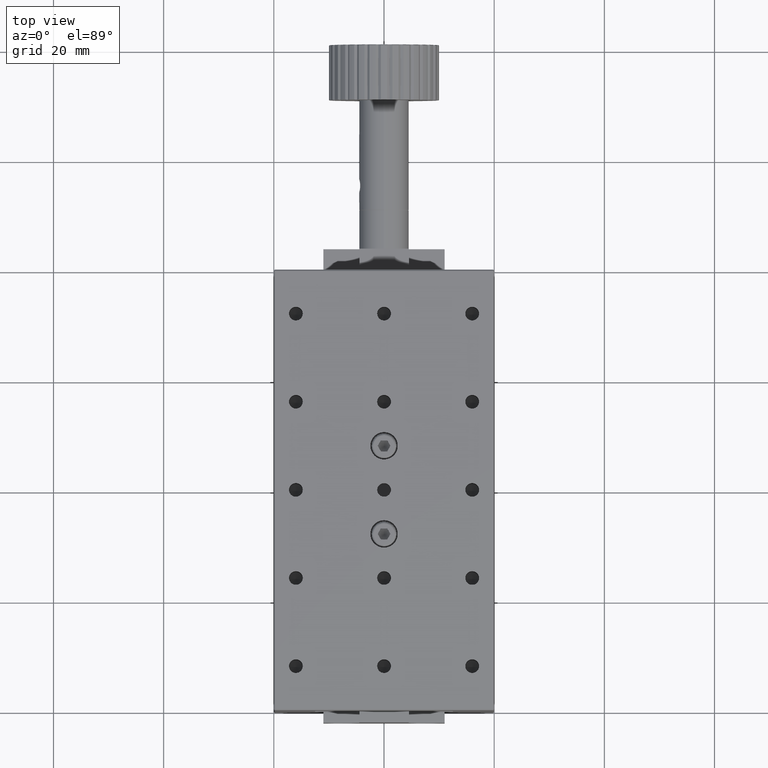
[diagram: clean part render]
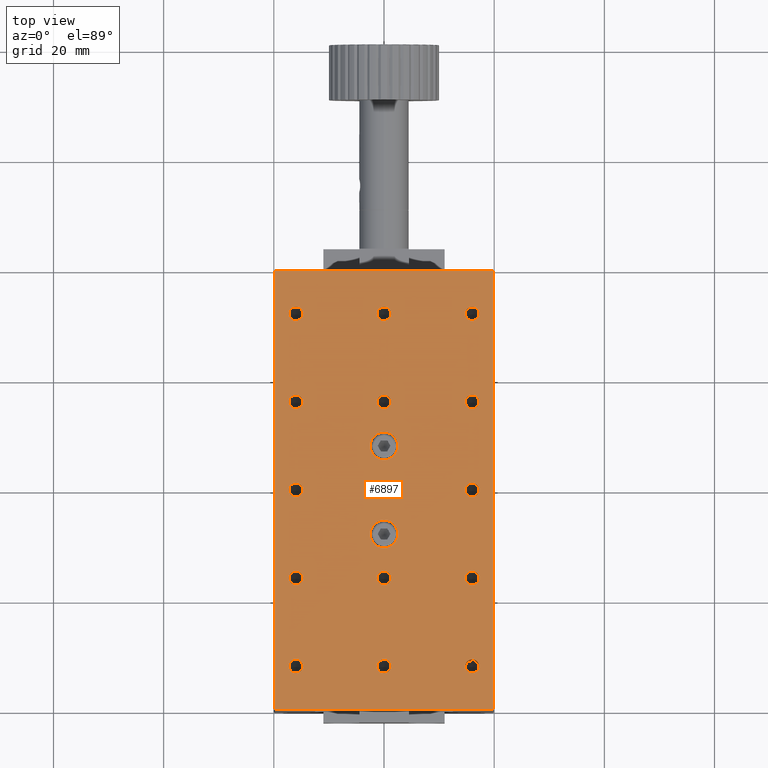
[diagram: same view with one face highlighted and labeled with its STEP entity id]
A machine part, top view. The second image highlights one B-rep face of the part: STEP entity #6897.
In plain terms, the highlighted planar face has unit normal (0, 0, -1).
Its self-contained STEP definition (entity closure, byte-faithful):
#124 = VERTEX_POINT ( 'NONE', #17958 ) ;
#147 = FACE_BOUND ( 'NONE', #23936, .T. ) ;
#229 = DIRECTION ( 'NONE',  ( 1.000000000000000000, 0.0000000000000000000, 0.0000000000000000000 ) ) ;
#295 = AXIS2_PLACEMENT_3D ( 'NONE', #25595, #12956, #311 ) ;
#311 = DIRECTION ( 'NONE',  ( 1.000000000000000000, 0.0000000000000000000, 0.0000000000000000000 ) ) ;
#346 = DIRECTION ( 'NONE',  ( 1.000000000000000000, 0.0000000000000000000, 0.0000000000000000000 ) ) ;
#405 = CARTESIAN_POINT ( 'NONE',  ( -16.00000000000000000, 32.00000000000000000, 30.00000000000000000 ) ) ;
#445 = CARTESIAN_POINT ( 'NONE',  ( 1.250000000000000000, -16.00000000000000000, 30.00000000000000000 ) ) ;
#475 = DIRECTION ( 'NONE',  ( -0.0000000000000000000, 0.0000000000000000000, 1.000000000000000000 ) ) ;
#534 = ORIENTED_EDGE ( 'NONE', *, *, #8130, .F. ) ;
#544 = AXIS2_PLACEMENT_3D ( 'NONE', #12443, #27184, #14575 ) ;
#579 = CIRCLE ( 'NONE', #16755, 1.250000000000000000 ) ;
#709 = EDGE_CURVE ( 'NONE', #18464, #20191, #2756, .T. ) ;
#718 = DIRECTION ( 'NONE',  ( 0.0000000000000000000, -1.000000000000000000, -1.387778780781445500E-015 ) ) ;
#811 = DIRECTION ( 'NONE',  ( 0.0000000000000000000, -6.938893903907229400E-016, 1.000000000000000000 ) ) ;
#815 = FACE_BOUND ( 'NONE', #17749, .T. ) ;
#894 = VERTEX_POINT ( 'NONE', #22662 ) ;
#913 = CARTESIAN_POINT ( 'NONE',  ( 0.0000000000000000000, 7.999999999999998200, 30.00000000000000000 ) ) ;
#965 = DIRECTION ( 'NONE',  ( 1.000000000000000000, 0.0000000000000000000, 0.0000000000000000000 ) ) ;
#976 = AXIS2_PLACEMENT_3D ( 'NONE', #26803, #8912, #12921 ) ;
#1008 = ORIENTED_EDGE ( 'NONE', *, *, #11231, .F. ) ;
#1035 = CIRCLE ( 'NONE', #13650, 1.250000000000001100 ) ;
#1114 = CARTESIAN_POINT ( 'NONE',  ( 14.75000000000000200, -32.00000000000000000, 30.00000000000000000 ) ) ;
#1295 = CIRCLE ( 'NONE', #9816, 1.250000000000000000 ) ;
#1385 = CARTESIAN_POINT ( 'NONE',  ( 19.80000000001449900, -39.80000000007100200, 29.99999999991449300 ) ) ;
#1478 = FACE_BOUND ( 'NONE', #2002, .T. ) ;
#1507 = ORIENTED_EDGE ( 'NONE', *, *, #6130, .F. ) ;
#1559 = AXIS2_PLACEMENT_3D ( 'NONE', #22395, #9689, #24505 ) ;
#1685 = AXIS2_PLACEMENT_3D ( 'NONE', #13457, #11587, #11303 ) ;
#1815 = VERTEX_POINT ( 'NONE', #25751 ) ;
#1817 = DIRECTION ( 'NONE',  ( 0.0000000000000000000, 0.0000000000000000000, 1.000000000000000000 ) ) ;
#1969 = CIRCLE ( 'NONE', #4542, 1.250000000000001100 ) ;
#2002 = EDGE_LOOP ( 'NONE', ( #2187, #4800 ) ) ;
#2121 = EDGE_LOOP ( 'NONE', ( #15075, #26439 ) ) ;
#2122 = DIRECTION ( 'NONE',  ( 1.000000000000000000, 0.0000000000000000000, 0.0000000000000000000 ) ) ;
#2128 = CARTESIAN_POINT ( 'NONE',  ( 17.25000000000000000, 32.00000000000000000, 30.00000000000000000 ) ) ;
#2162 = EDGE_LOOP ( 'NONE', ( #534, #15062 ) ) ;
#2187 = ORIENTED_EDGE ( 'NONE', *, *, #6980, .F. ) ;
#2194 = EDGE_LOOP ( 'NONE', ( #3184, #14796 ) ) ;
#2211 = CARTESIAN_POINT ( 'NONE',  ( 0.0000000000000000000, 0.0000000000000000000, 30.00000000000000000 ) ) ;
#2229 = EDGE_CURVE ( 'NONE', #17092, #17724, #4963, .T. ) ;
#2467 = CARTESIAN_POINT ( 'NONE',  ( 0.0000000000000000000, 0.0000000000000000000, 30.00000000000000000 ) ) ;
#2539 = DIRECTION ( 'NONE',  ( 1.000000000000000000, 0.0000000000000000000, 0.0000000000000000000 ) ) ;
#2586 = DIRECTION ( 'NONE',  ( -0.0000000000000000000, 0.0000000000000000000, 1.000000000000000000 ) ) ;
#2597 = CARTESIAN_POINT ( 'NONE',  ( 16.00000000000000000, 32.00000000000000000, 30.00000000000000000 ) ) ;
#2607 = VERTEX_POINT ( 'NONE', #19676 ) ;
#2651 = EDGE_CURVE ( 'NONE', #4113, #5127, #7792, .T. ) ;
#2716 = ORIENTED_EDGE ( 'NONE', *, *, #26018, .F. ) ;
#2756 = CIRCLE ( 'NONE', #26189, 1.250000000000001100 ) ;
#2826 = DIRECTION ( 'NONE',  ( 1.000000000000000000, 0.0000000000000000000, 0.0000000000000000000 ) ) ;
#2884 = CIRCLE ( 'NONE', #976, 2.500000000000000400 ) ;
#2927 = CARTESIAN_POINT ( 'NONE',  ( -1.250000000000000000, -32.00000000000000000, 30.00000000000000000 ) ) ;
#2948 = DIRECTION ( 'NONE',  ( -0.0000000000000000000, 0.0000000000000000000, 1.000000000000000000 ) ) ;
#3037 = CIRCLE ( 'NONE', #27174, 1.250000000000001100 ) ;
#3049 = CARTESIAN_POINT ( 'NONE',  ( 19.80000000007101200, 39.80000000001450600, 29.99999999991449300 ) ) ;
#3115 = VERTEX_POINT ( 'NONE', #11966 ) ;
#3184 = ORIENTED_EDGE ( 'NONE', *, *, #9685, .F. ) ;
#3362 = CARTESIAN_POINT ( 'NONE',  ( -16.00000000000000000, -32.00000000000000000, 30.00000000000000000 ) ) ;
#3415 = CIRCLE ( 'NONE', #1559, 1.250000000000000000 ) ;
#3432 = CARTESIAN_POINT ( 'NONE',  ( 16.00000000000000000, 0.0000000000000000000, 30.00000000000000000 ) ) ;
#3568 = AXIS2_PLACEMENT_3D ( 'NONE', #25512, #12873, #229 ) ;
#3839 = ORIENTED_EDGE ( 'NONE', *, *, #14949, .F. ) ;
#4113 = VERTEX_POINT ( 'NONE', #2128 ) ;
#4233 = CARTESIAN_POINT ( 'NONE',  ( 0.0000000000000000000, -8.000000000000001800, 30.00000000000000000 ) ) ;
#4333 = DIRECTION ( 'NONE',  ( 1.000000000000000000, 0.0000000000000000000, 0.0000000000000000000 ) ) ;
#4399 = AXIS2_PLACEMENT_3D ( 'NONE', #4684, #19501, #6807 ) ;
#4542 = AXIS2_PLACEMENT_3D ( 'NONE', #8767, #23597, #10906 ) ;
#4589 = CIRCLE ( 'NONE', #8231, 1.250000000000001100 ) ;
#4660 = VERTEX_POINT ( 'NONE', #17550 ) ;
#4684 = CARTESIAN_POINT ( 'NONE',  ( -16.00000000000000000, 0.0000000000000000000, 30.00000000000000000 ) ) ;
#4744 = ORIENTED_EDGE ( 'NONE', *, *, #11749, .F. ) ;
#4800 = ORIENTED_EDGE ( 'NONE', *, *, #14382, .F. ) ;
#4963 = CIRCLE ( 'NONE', #21645, 1.250000000000000000 ) ;
#5080 = FACE_BOUND ( 'NONE', #19714, .T. ) ;
#5127 = VERTEX_POINT ( 'NONE', #16843 ) ;
#5143 = ORIENTED_EDGE ( 'NONE', *, *, #2651, .F. ) ;
#5207 = CARTESIAN_POINT ( 'NONE',  ( 0.0000000000000000000, 5.499999999999998200, 29.99999999999999600 ) ) ;
#5464 = VERTEX_POINT ( 'NONE', #14565 ) ;
#5473 = DIRECTION ( 'NONE',  ( 1.000000000000000000, 0.0000000000000000000, 0.0000000000000000000 ) ) ;
#5507 = EDGE_LOOP ( 'NONE', ( #8607, #3839 ) ) ;
#5525 = ORIENTED_EDGE ( 'NONE', *, *, #9943, .F. ) ;
#5561 = DIRECTION ( 'NONE',  ( 1.000000000000000000, 0.0000000000000000000, 0.0000000000000000000 ) ) ;
#5601 = AXIS2_PLACEMENT_3D ( 'NONE', #12541, #27287, #14668 ) ;
#5637 = CIRCLE ( 'NONE', #5601, 1.250000000000001100 ) ;
#5700 = VERTEX_POINT ( 'NONE', #7599 ) ;
#5718 = CARTESIAN_POINT ( 'NONE',  ( 1.250000000000000000, 16.00000000000000000, 30.00000000000000000 ) ) ;
#5725 = CARTESIAN_POINT ( 'NONE',  ( 16.00000000000000000, -32.00000000000000000, 30.00000000000000000 ) ) ;
#5735 = DIRECTION ( 'NONE',  ( 0.0000000000000000000, -6.938893903907229400E-016, 1.000000000000000000 ) ) ;
#5746 = FACE_BOUND ( 'NONE', #8260, .T. ) ;
#5825 = AXIS2_PLACEMENT_3D ( 'NONE', #13125, #475, #15234 ) ;
#5956 = AXIS2_PLACEMENT_3D ( 'NONE', #9027, #23854, #11166 ) ;
#6130 = EDGE_CURVE ( 'NONE', #16082, #25738, #2884, .T. ) ;
#6233 = CIRCLE ( 'NONE', #12655, 2.500000000000000400 ) ;
#6242 = EDGE_CURVE ( 'NONE', #8649, #13018, #25952, .T. ) ;
#6257 = CARTESIAN_POINT ( 'NONE',  ( 0.0000000000000000000, -16.00000000000000000, 30.00000000000000000 ) ) ;
#6345 = DIRECTION ( 'NONE',  ( 0.0000000000000000000, -1.000000000000000000, -1.387778780781445500E-015 ) ) ;
#6350 = ORIENTED_EDGE ( 'NONE', *, *, #6242, .F. ) ;
#6411 = FACE_BOUND ( 'NONE', #2194, .T. ) ;
#6416 = DIRECTION ( 'NONE',  ( -0.0000000000000000000, 0.0000000000000000000, 1.000000000000000000 ) ) ;
#6523 = DIRECTION ( 'NONE',  ( -0.0000000000000000000, 1.000000000000000000, -0.0000000000000000000 ) ) ;
#6807 = DIRECTION ( 'NONE',  ( 1.000000000000000000, 0.0000000000000000000, 0.0000000000000000000 ) ) ;
#6897 = ADVANCED_FACE ( 'NONE', ( #23295, #12692, #1478, #17679, #12037, #6411, #815, #22641, #17003, #11359, #5746, #147, #21947, #16329, #10690, #5080, #26860, #21281 ), #22125, .F. ) ;
#6980 = EDGE_CURVE ( 'NONE', #25096, #10131, #18009, .T. ) ;
#6996 = EDGE_CURVE ( 'NONE', #25738, #16082, #10348, .T. ) ;
#7041 = AXIS2_PLACEMENT_3D ( 'NONE', #2597, #2586, #2826 ) ;
#7056 = EDGE_CURVE ( 'NONE', #13018, #8649, #14652, .T. ) ;
#7188 = CARTESIAN_POINT ( 'NONE',  ( -1.250000000000000000, 32.00000000000000000, 30.00000000000000000 ) ) ;
#7248 = VERTEX_POINT ( 'NONE', #7188 ) ;
#7369 = LINE ( 'NONE', #14919, #12346 ) ;
#7507 = DIRECTION ( 'NONE',  ( 1.000000000000000000, 0.0000000000000000000, 0.0000000000000000000 ) ) ;
#7599 = CARTESIAN_POINT ( 'NONE',  ( 1.250000000000000000, 32.00000000000000000, 30.00000000000000000 ) ) ;
#7780 = DIRECTION ( 'NONE',  ( 0.0000000000000000000, 0.0000000000000000000, 1.000000000000000000 ) ) ;
#7792 = CIRCLE ( 'NONE', #7041, 1.250000000000001100 ) ;
#7841 = DIRECTION ( 'NONE',  ( 1.000000000000000000, 0.0000000000000000000, 0.0000000000000000000 ) ) ;
#7856 = VERTEX_POINT ( 'NONE', #445 ) ;
#7907 = EDGE_LOOP ( 'NONE', ( #24608, #18112 ) ) ;
#8130 = EDGE_CURVE ( 'NONE', #20191, #18464, #1035, .T. ) ;
#8184 = CIRCLE ( 'NONE', #544, 1.250000000000001100 ) ;
#8215 = CARTESIAN_POINT ( 'NONE',  ( -17.25000000000000000, 1.530808498934193000E-016, 30.00000000000000000 ) ) ;
#8231 = AXIS2_PLACEMENT_3D ( 'NONE', #26221, #13591, #965 ) ;
#8260 = EDGE_LOOP ( 'NONE', ( #10556, #6350 ) ) ;
#8353 = DIRECTION ( 'NONE',  ( 1.000000000000000000, 0.0000000000000000000, 0.0000000000000000000 ) ) ;
#8361 = CARTESIAN_POINT ( 'NONE',  ( 0.0000000000000000000, 39.79999999999999700, 30.00000000000000000 ) ) ;
#8447 = ORIENTED_EDGE ( 'NONE', *, *, #21249, .F. ) ;
#8582 = DIRECTION ( 'NONE',  ( -0.0000000000000000000, 0.0000000000000000000, 1.000000000000000000 ) ) ;
#8607 = ORIENTED_EDGE ( 'NONE', *, *, #14014, .F. ) ;
#8649 = VERTEX_POINT ( 'NONE', #13788 ) ;
#8767 = CARTESIAN_POINT ( 'NONE',  ( -16.00000000000000000, 32.00000000000000000, 30.00000000000000000 ) ) ;
#8912 = DIRECTION ( 'NONE',  ( 0.0000000000000000000, -6.938893903907229400E-016, 1.000000000000000000 ) ) ;
#9023 = ORIENTED_EDGE ( 'NONE', *, *, #25475, .F. ) ;
#9027 = CARTESIAN_POINT ( 'NONE',  ( 16.00000000000000000, -16.00000000000000000, 30.00000000000000000 ) ) ;
#9232 = CARTESIAN_POINT ( 'NONE',  ( 14.75000000000000200, -16.00000000000000000, 30.00000000000000000 ) ) ;
#9257 = CIRCLE ( 'NONE', #9830, 1.250000000000000000 ) ;
#9685 = EDGE_CURVE ( 'NONE', #2607, #4660, #12031, .T. ) ;
#9689 = DIRECTION ( 'NONE',  ( -0.0000000000000000000, 0.0000000000000000000, 1.000000000000000000 ) ) ;
#9816 = AXIS2_PLACEMENT_3D ( 'NONE', #6257, #21026, #8353 ) ;
#9830 = AXIS2_PLACEMENT_3D ( 'NONE', #2211, #16986, #4333 ) ;
#9943 = EDGE_CURVE ( 'NONE', #25087, #11530, #16641, .T. ) ;
#9969 = EDGE_CURVE ( 'NONE', #1815, #15105, #15976, .T. ) ;
#10087 = DIRECTION ( 'NONE',  ( 0.0000000000000000000, 0.0000000000000000000, 1.000000000000000000 ) ) ;
#10100 = CARTESIAN_POINT ( 'NONE',  ( 17.25000000000000000, -32.00000000000000000, 30.00000000000000000 ) ) ;
#10131 = VERTEX_POINT ( 'NONE', #9232 ) ;
#10348 = CIRCLE ( 'NONE', #11576, 2.500000000000000400 ) ;
#10556 = ORIENTED_EDGE ( 'NONE', *, *, #7056, .F. ) ;
#10637 = CARTESIAN_POINT ( 'NONE',  ( 0.0000000000000000000, 16.00000000000000000, 30.00000000000000000 ) ) ;
#10671 = ORIENTED_EDGE ( 'NONE', *, *, #18564, .F. ) ;
#10690 = FACE_BOUND ( 'NONE', #14772, .T. ) ;
#10729 = CIRCLE ( 'NONE', #3568, 1.250000000000000000 ) ;
#10863 = DIRECTION ( 'NONE',  ( -0.0000000000000000000, 0.0000000000000000000, 1.000000000000000000 ) ) ;
#10906 = DIRECTION ( 'NONE',  ( 1.000000000000000000, 0.0000000000000000000, 0.0000000000000000000 ) ) ;
#11166 = DIRECTION ( 'NONE',  ( 1.000000000000000000, 0.0000000000000000000, 0.0000000000000000000 ) ) ;
#11170 = EDGE_CURVE ( 'NONE', #4660, #2607, #12554, .T. ) ;
#11231 = EDGE_CURVE ( 'NONE', #21016, #22408, #11900, .T. ) ;
#11303 = DIRECTION ( 'NONE',  ( 1.000000000000000000, 0.0000000000000000000, 0.0000000000000000000 ) ) ;
#11359 = FACE_BOUND ( 'NONE', #7907, .T. ) ;
#11495 = CIRCLE ( 'NONE', #4399, 1.250000000000001100 ) ;
#11530 = VERTEX_POINT ( 'NONE', #1385 ) ;
#11550 = CIRCLE ( 'NONE', #5956, 1.250000000000001100 ) ;
#11576 = AXIS2_PLACEMENT_3D ( 'NONE', #913, #811, #718 ) ;
#11587 = DIRECTION ( 'NONE',  ( 0.0000000000000000000, 0.0000000000000000000, 1.000000000000000000 ) ) ;
#11713 = EDGE_CURVE ( 'NONE', #7856, #3115, #1295, .T. ) ;
#11749 = EDGE_CURVE ( 'NONE', #12151, #894, #6233, .T. ) ;
#11875 = LINE ( 'NONE', #22080, #17513 ) ;
#11900 = CIRCLE ( 'NONE', #22778, 1.250000000000001100 ) ;
#11966 = CARTESIAN_POINT ( 'NONE',  ( -1.250000000000000000, -16.00000000000000000, 30.00000000000000000 ) ) ;
#11967 = EDGE_CURVE ( 'NONE', #5127, #4113, #16469, .T. ) ;
#12031 = CIRCLE ( 'NONE', #13689, 1.250000000000001100 ) ;
#12037 = FACE_BOUND ( 'NONE', #21052, .T. ) ;
#12151 = VERTEX_POINT ( 'NONE', #16207 ) ;
#12333 = EDGE_CURVE ( 'NONE', #12398, #26379, #579, .T. ) ;
#12346 = VECTOR ( 'NONE', #6523, 1000.000000000000000 ) ;
#12398 = VERTEX_POINT ( 'NONE', #25613 ) ;
#12443 = CARTESIAN_POINT ( 'NONE',  ( 16.00000000000000000, -32.00000000000000000, 30.00000000000000000 ) ) ;
#12541 = CARTESIAN_POINT ( 'NONE',  ( -16.00000000000000000, 0.0000000000000000000, 30.00000000000000000 ) ) ;
#12554 = CIRCLE ( 'NONE', #12836, 1.250000000000001100 ) ;
#12655 = AXIS2_PLACEMENT_3D ( 'NONE', #4233, #19044, #6345 ) ;
#12692 = FACE_BOUND ( 'NONE', #24395, .T. ) ;
#12703 = EDGE_CURVE ( 'NONE', #3115, #7856, #3415, .T. ) ;
#12784 = DIRECTION ( 'NONE',  ( 1.000000000000000000, 0.0000000000000000000, 0.0000000000000000000 ) ) ;
#12836 = AXIS2_PLACEMENT_3D ( 'NONE', #3432, #18238, #5561 ) ;
#12873 = DIRECTION ( 'NONE',  ( -0.0000000000000000000, 0.0000000000000000000, 1.000000000000000000 ) ) ;
#12921 = DIRECTION ( 'NONE',  ( 0.0000000000000000000, -1.000000000000000000, -1.387778780781445500E-015 ) ) ;
#12956 = DIRECTION ( 'NONE',  ( -0.0000000000000000000, 0.0000000000000000000, 1.000000000000000000 ) ) ;
#12958 = CARTESIAN_POINT ( 'NONE',  ( 19.80000000000000100, 0.0000000000000000000, 30.00000000000000000 ) ) ;
#12960 = CIRCLE ( 'NONE', #16818, 1.250000000000000000 ) ;
#12990 = DIRECTION ( 'NONE',  ( -0.0000000000000000000, 0.0000000000000000000, 1.000000000000000000 ) ) ;
#13018 = VERTEX_POINT ( 'NONE', #19014 ) ;
#13098 = EDGE_LOOP ( 'NONE', ( #23131, #9023, #21310, #5525 ) ) ;
#13125 = CARTESIAN_POINT ( 'NONE',  ( 0.0000000000000000000, 32.00000000000000000, 30.00000000000000000 ) ) ;
#13457 = CARTESIAN_POINT ( 'NONE',  ( 16.00000000000000000, -16.00000000000000000, 30.00000000000000000 ) ) ;
#13591 = DIRECTION ( 'NONE',  ( -0.0000000000000000000, 0.0000000000000000000, 1.000000000000000000 ) ) ;
#13650 = AXIS2_PLACEMENT_3D ( 'NONE', #20454, #7780, #22608 ) ;
#13689 = AXIS2_PLACEMENT_3D ( 'NONE', #22795, #10087, #24874 ) ;
#13788 = CARTESIAN_POINT ( 'NONE',  ( -17.25000000000000000, 16.00000000000000000, 30.00000000000000000 ) ) ;
#13834 = CARTESIAN_POINT ( 'NONE',  ( -16.00000000000000000, 16.00000000000000000, 30.00000000000000000 ) ) ;
#13861 = CIRCLE ( 'NONE', #295, 1.250000000000001100 ) ;
#14014 = EDGE_CURVE ( 'NONE', #124, #16314, #5637, .T. ) ;
#14084 = EDGE_CURVE ( 'NONE', #17724, #17092, #9257, .T. ) ;
#14093 = ORIENTED_EDGE ( 'NONE', *, *, #2229, .F. ) ;
#14133 = EDGE_LOOP ( 'NONE', ( #18107, #2716 ) ) ;
#14365 = CIRCLE ( 'NONE', #21443, 2.500000000000000400 ) ;
#14382 = EDGE_CURVE ( 'NONE', #10131, #25096, #11550, .T. ) ;
#14493 = EDGE_CURVE ( 'NONE', #11530, #20829, #11875, .T. ) ;
#14565 = CARTESIAN_POINT ( 'NONE',  ( 1.250000000000000000, -32.00000000000000000, 30.00000000000000000 ) ) ;
#14575 = DIRECTION ( 'NONE',  ( 1.000000000000000000, 0.0000000000000000000, 0.0000000000000000000 ) ) ;
#14620 = VECTOR ( 'NONE', #2122, 1000.000000000000000 ) ;
#14652 = CIRCLE ( 'NONE', #21496, 1.250000000000001100 ) ;
#14668 = DIRECTION ( 'NONE',  ( 1.000000000000000000, 0.0000000000000000000, 0.0000000000000000000 ) ) ;
#14751 = ORIENTED_EDGE ( 'NONE', *, *, #18730, .F. ) ;
#14772 = EDGE_LOOP ( 'NONE', ( #27218, #1507 ) ) ;
#14796 = ORIENTED_EDGE ( 'NONE', *, *, #11170, .F. ) ;
#14911 = DIRECTION ( 'NONE',  ( -0.0000000000000000000, 0.0000000000000000000, 1.000000000000000000 ) ) ;
#14919 = CARTESIAN_POINT ( 'NONE',  ( -19.80000000000000100, 0.0000000000000000000, 30.00000000000000000 ) ) ;
#14949 = EDGE_CURVE ( 'NONE', #16314, #124, #11495, .T. ) ;
#15062 = ORIENTED_EDGE ( 'NONE', *, *, #709, .F. ) ;
#15075 = ORIENTED_EDGE ( 'NONE', *, *, #18582, .F. ) ;
#15105 = VERTEX_POINT ( 'NONE', #18012 ) ;
#15177 = DIRECTION ( 'NONE',  ( -0.0000000000000000000, 0.0000000000000000000, 1.000000000000000000 ) ) ;
#15201 = CARTESIAN_POINT ( 'NONE',  ( -19.80000000000000100, 39.79999999999999700, 30.00000000000000000 ) ) ;
#15234 = DIRECTION ( 'NONE',  ( 1.000000000000000000, 0.0000000000000000000, 0.0000000000000000000 ) ) ;
#15244 = CARTESIAN_POINT ( 'NONE',  ( -17.25000000000000000, -16.00000000000000000, 30.00000000000000000 ) ) ;
#15388 = DIRECTION ( 'NONE',  ( 1.000000000000000000, 0.0000000000000000000, 0.0000000000000000000 ) ) ;
#15561 = CARTESIAN_POINT ( 'NONE',  ( 16.00000000000000000, 32.00000000000000000, 30.00000000000000000 ) ) ;
#15674 = DIRECTION ( 'NONE',  ( -0.0000000000000000000, 0.0000000000000000000, 1.000000000000000000 ) ) ;
#15687 = EDGE_CURVE ( 'NONE', #5700, #7248, #17056, .T. ) ;
#15728 = ORIENTED_EDGE ( 'NONE', *, *, #24398, .F. ) ;
#15843 = EDGE_LOOP ( 'NONE', ( #20733, #26084 ) ) ;
#15976 = CIRCLE ( 'NONE', #15979, 1.250000000000001100 ) ;
#15979 = AXIS2_PLACEMENT_3D ( 'NONE', #405, #15177, #2539 ) ;
#16082 = VERTEX_POINT ( 'NONE', #18083 ) ;
#16207 = CARTESIAN_POINT ( 'NONE',  ( 3.061616997868382600E-016, -5.500000000000001800, 30.00000000000000400 ) ) ;
#16314 = VERTEX_POINT ( 'NONE', #8215 ) ;
#16329 = FACE_BOUND ( 'NONE', #2121, .T. ) ;
#16386 = AXIS2_PLACEMENT_3D ( 'NONE', #15561, #2948, #17723 ) ;
#16469 = CIRCLE ( 'NONE', #16386, 1.250000000000001100 ) ;
#16524 = VERTEX_POINT ( 'NONE', #15244 ) ;
#16641 = LINE ( 'NONE', #12958, #27182 ) ;
#16755 = AXIS2_PLACEMENT_3D ( 'NONE', #10637, #25421, #12784 ) ;
#16818 = AXIS2_PLACEMENT_3D ( 'NONE', #21252, #8582, #23414 ) ;
#16843 = CARTESIAN_POINT ( 'NONE',  ( 14.75000000000000200, 32.00000000000000000, 30.00000000000000000 ) ) ;
#16986 = DIRECTION ( 'NONE',  ( -0.0000000000000000000, 0.0000000000000000000, 1.000000000000000000 ) ) ;
#17003 = FACE_BOUND ( 'NONE', #2162, .T. ) ;
#17056 = CIRCLE ( 'NONE', #17886, 1.250000000000000000 ) ;
#17092 = VERTEX_POINT ( 'NONE', #24227 ) ;
#17399 = EDGE_CURVE ( 'NONE', #18071, #25087, #25832, .T. ) ;
#17513 = VECTOR ( 'NONE', #26210, 1000.000000000000000 ) ;
#17550 = CARTESIAN_POINT ( 'NONE',  ( 14.75000000000000200, 1.530808498934190800E-016, 30.00000000000000000 ) ) ;
#17618 = CARTESIAN_POINT ( 'NONE',  ( -17.25000000000000000, -32.00000000000000000, 30.00000000000000000 ) ) ;
#17679 = FACE_BOUND ( 'NONE', #23577, .T. ) ;
#17723 = DIRECTION ( 'NONE',  ( 1.000000000000000000, 0.0000000000000000000, 0.0000000000000000000 ) ) ;
#17724 = VERTEX_POINT ( 'NONE', #22631 ) ;
#17749 = EDGE_LOOP ( 'NONE', ( #19545, #14093 ) ) ;
#17806 = AXIS2_PLACEMENT_3D ( 'NONE', #15201, #25633, #19656 ) ;
#17839 = CARTESIAN_POINT ( 'NONE',  ( 17.25000000000000000, -16.00000000000000000, 30.00000000000000000 ) ) ;
#17851 = CIRCLE ( 'NONE', #5825, 1.250000000000000000 ) ;
#17886 = AXIS2_PLACEMENT_3D ( 'NONE', #19121, #6416, #21184 ) ;
#17892 = CARTESIAN_POINT ( 'NONE',  ( 16.00000000000000000, 16.00000000000000000, 30.00000000000000000 ) ) ;
#17958 = CARTESIAN_POINT ( 'NONE',  ( -14.75000000000000000, 0.0000000000000000000, 30.00000000000000000 ) ) ;
#18009 = CIRCLE ( 'NONE', #1685, 1.250000000000001100 ) ;
#18012 = CARTESIAN_POINT ( 'NONE',  ( -14.75000000000000000, 32.00000000000000000, 30.00000000000000000 ) ) ;
#18071 = VERTEX_POINT ( 'NONE', #21577 ) ;
#18083 = CARTESIAN_POINT ( 'NONE',  ( 3.061616997868382600E-016, 10.49999999999999800, 30.00000000000000400 ) ) ;
#18107 = ORIENTED_EDGE ( 'NONE', *, *, #19807, .F. ) ;
#18112 = ORIENTED_EDGE ( 'NONE', *, *, #12333, .F. ) ;
#18167 = DIRECTION ( 'NONE',  ( -0.0000000000000000000, 0.0000000000000000000, 1.000000000000000000 ) ) ;
#18238 = DIRECTION ( 'NONE',  ( 0.0000000000000000000, 0.0000000000000000000, 1.000000000000000000 ) ) ;
#18239 = ORIENTED_EDGE ( 'NONE', *, *, #23668, .F. ) ;
#18391 = EDGE_LOOP ( 'NONE', ( #8447, #1008 ) ) ;
#18430 = CARTESIAN_POINT ( 'NONE',  ( 0.0000000000000000000, -8.000000000000001800, 30.00000000000000000 ) ) ;
#18464 = VERTEX_POINT ( 'NONE', #23060 ) ;
#18564 = EDGE_CURVE ( 'NONE', #25346, #19915, #13861, .T. ) ;
#18582 = EDGE_CURVE ( 'NONE', #15105, #1815, #1969, .T. ) ;
#18666 = DIRECTION ( 'NONE',  ( 1.000000000000000000, 0.0000000000000000000, 0.0000000000000000000 ) ) ;
#18730 = EDGE_CURVE ( 'NONE', #16524, #27239, #4589, .T. ) ;
#18930 = AXIS2_PLACEMENT_3D ( 'NONE', #25640, #12990, #346 ) ;
#19014 = CARTESIAN_POINT ( 'NONE',  ( -14.75000000000000000, 16.00000000000000000, 30.00000000000000000 ) ) ;
#19044 = DIRECTION ( 'NONE',  ( 0.0000000000000000000, -6.938893903907229400E-016, 1.000000000000000000 ) ) ;
#19121 = CARTESIAN_POINT ( 'NONE',  ( 0.0000000000000000000, 32.00000000000000000, 30.00000000000000000 ) ) ;
#19501 = DIRECTION ( 'NONE',  ( -0.0000000000000000000, 0.0000000000000000000, 1.000000000000000000 ) ) ;
#19545 = ORIENTED_EDGE ( 'NONE', *, *, #14084, .F. ) ;
#19656 = DIRECTION ( 'NONE',  ( 1.000000000000000000, 0.0000000000000000000, 0.0000000000000000000 ) ) ;
#19676 = CARTESIAN_POINT ( 'NONE',  ( 17.25000000000000000, 0.0000000000000000000, 30.00000000000000000 ) ) ;
#19714 = EDGE_LOOP ( 'NONE', ( #27233, #4744 ) ) ;
#19807 = EDGE_CURVE ( 'NONE', #5464, #25675, #26650, .T. ) ;
#19915 = VERTEX_POINT ( 'NONE', #17618 ) ;
#20191 = VERTEX_POINT ( 'NONE', #21089 ) ;
#20336 = ORIENTED_EDGE ( 'NONE', *, *, #11967, .F. ) ;
#20454 = CARTESIAN_POINT ( 'NONE',  ( 16.00000000000000000, 16.00000000000000000, 30.00000000000000000 ) ) ;
#20507 = DIRECTION ( 'NONE',  ( -0.0000000000000000000, 0.0000000000000000000, 1.000000000000000000 ) ) ;
#20513 = DIRECTION ( 'NONE',  ( 0.0000000000000000000, -1.000000000000000000, -1.387778780781445500E-015 ) ) ;
#20733 = ORIENTED_EDGE ( 'NONE', *, *, #15687, .F. ) ;
#20765 = AXIS2_PLACEMENT_3D ( 'NONE', #23557, #10863, #25655 ) ;
#20776 = AXIS2_PLACEMENT_3D ( 'NONE', #13834, #15674, #15388 ) ;
#20824 = EDGE_CURVE ( 'NONE', #7248, #5700, #17851, .T. ) ;
#20829 = VERTEX_POINT ( 'NONE', #23678 ) ;
#20919 = DIRECTION ( 'NONE',  ( -0.0000000000000000000, 0.0000000000000000000, 1.000000000000000000 ) ) ;
#21010 = CARTESIAN_POINT ( 'NONE',  ( -16.00000000000000000, 16.00000000000000000, 30.00000000000000000 ) ) ;
#21016 = VERTEX_POINT ( 'NONE', #1114 ) ;
#21026 = DIRECTION ( 'NONE',  ( -0.0000000000000000000, 0.0000000000000000000, 1.000000000000000000 ) ) ;
#21052 = EDGE_LOOP ( 'NONE', ( #18239, #14751 ) ) ;
#21089 = CARTESIAN_POINT ( 'NONE',  ( 17.25000000000000000, 16.00000000000000000, 30.00000000000000000 ) ) ;
#21184 = DIRECTION ( 'NONE',  ( 1.000000000000000000, 0.0000000000000000000, 0.0000000000000000000 ) ) ;
#21249 = EDGE_CURVE ( 'NONE', #22408, #21016, #8184, .T. ) ;
#21252 = CARTESIAN_POINT ( 'NONE',  ( 0.0000000000000000000, -32.00000000000000000, 30.00000000000000000 ) ) ;
#21281 = FACE_OUTER_BOUND ( 'NONE', #13098, .T. ) ;
#21310 = ORIENTED_EDGE ( 'NONE', *, *, #14493, .F. ) ;
#21443 = AXIS2_PLACEMENT_3D ( 'NONE', #18430, #5735, #20513 ) ;
#21496 = AXIS2_PLACEMENT_3D ( 'NONE', #21010, #20919, #18666 ) ;
#21577 = CARTESIAN_POINT ( 'NONE',  ( -19.80000000007100500, 39.80000000001450600, 29.99999999991449300 ) ) ;
#21645 = AXIS2_PLACEMENT_3D ( 'NONE', #2467, #14911, #23247 ) ;
#21947 = FACE_BOUND ( 'NONE', #15843, .T. ) ;
#22080 = CARTESIAN_POINT ( 'NONE',  ( 0.0000000000000000000, -39.79999999999999700, 30.00000000000000000 ) ) ;
#22125 = PLANE ( 'NONE',  #17806 ) ;
#22395 = CARTESIAN_POINT ( 'NONE',  ( 0.0000000000000000000, -16.00000000000000000, 30.00000000000000000 ) ) ;
#22408 = VERTEX_POINT ( 'NONE', #10100 ) ;
#22583 = EDGE_CURVE ( 'NONE', #26379, #12398, #10729, .T. ) ;
#22608 = DIRECTION ( 'NONE',  ( 1.000000000000000000, 0.0000000000000000000, 0.0000000000000000000 ) ) ;
#22631 = CARTESIAN_POINT ( 'NONE',  ( 1.250000000000000000, 0.0000000000000000000, 30.00000000000000000 ) ) ;
#22641 = FACE_BOUND ( 'NONE', #5507, .T. ) ;
#22662 = CARTESIAN_POINT ( 'NONE',  ( 0.0000000000000000000, -10.50000000000000200, 29.99999999999999600 ) ) ;
#22778 = AXIS2_PLACEMENT_3D ( 'NONE', #5725, #20507, #7841 ) ;
#22795 = CARTESIAN_POINT ( 'NONE',  ( 16.00000000000000000, 0.0000000000000000000, 30.00000000000000000 ) ) ;
#22900 = CARTESIAN_POINT ( 'NONE',  ( -14.75000000000000000, -32.00000000000000000, 30.00000000000000000 ) ) ;
#22938 = EDGE_CURVE ( 'NONE', #894, #12151, #14365, .T. ) ;
#23060 = CARTESIAN_POINT ( 'NONE',  ( 14.75000000000000200, 16.00000000000000000, 30.00000000000000000 ) ) ;
#23131 = ORIENTED_EDGE ( 'NONE', *, *, #17399, .F. ) ;
#23247 = DIRECTION ( 'NONE',  ( 1.000000000000000000, 0.0000000000000000000, 0.0000000000000000000 ) ) ;
#23295 = FACE_BOUND ( 'NONE', #14133, .T. ) ;
#23414 = DIRECTION ( 'NONE',  ( 1.000000000000000000, 0.0000000000000000000, 0.0000000000000000000 ) ) ;
#23557 = CARTESIAN_POINT ( 'NONE',  ( -16.00000000000000000, -16.00000000000000000, 30.00000000000000000 ) ) ;
#23577 = EDGE_LOOP ( 'NONE', ( #25987, #25778 ) ) ;
#23597 = DIRECTION ( 'NONE',  ( -0.0000000000000000000, 0.0000000000000000000, 1.000000000000000000 ) ) ;
#23668 = EDGE_CURVE ( 'NONE', #27239, #16524, #25496, .T. ) ;
#23678 = CARTESIAN_POINT ( 'NONE',  ( -19.80000000001449900, -39.80000000007100200, 29.99999999991449300 ) ) ;
#23854 = DIRECTION ( 'NONE',  ( 0.0000000000000000000, 0.0000000000000000000, 1.000000000000000000 ) ) ;
#23936 = EDGE_LOOP ( 'NONE', ( #5143, #20336 ) ) ;
#23996 = CARTESIAN_POINT ( 'NONE',  ( -14.75000000000000000, -16.00000000000000000, 30.00000000000000000 ) ) ;
#24227 = CARTESIAN_POINT ( 'NONE',  ( -1.250000000000000000, 1.530808498934191600E-016, 30.00000000000000000 ) ) ;
#24395 = EDGE_LOOP ( 'NONE', ( #10671, #15728 ) ) ;
#24398 = EDGE_CURVE ( 'NONE', #19915, #25346, #3037, .T. ) ;
#24505 = DIRECTION ( 'NONE',  ( 1.000000000000000000, 0.0000000000000000000, 0.0000000000000000000 ) ) ;
#24608 = ORIENTED_EDGE ( 'NONE', *, *, #22583, .F. ) ;
#24874 = DIRECTION ( 'NONE',  ( 1.000000000000000000, 0.0000000000000000000, 0.0000000000000000000 ) ) ;
#25087 = VERTEX_POINT ( 'NONE', #3049 ) ;
#25096 = VERTEX_POINT ( 'NONE', #17839 ) ;
#25346 = VERTEX_POINT ( 'NONE', #22900 ) ;
#25421 = DIRECTION ( 'NONE',  ( -0.0000000000000000000, 0.0000000000000000000, 1.000000000000000000 ) ) ;
#25475 = EDGE_CURVE ( 'NONE', #20829, #18071, #7369, .T. ) ;
#25496 = CIRCLE ( 'NONE', #20765, 1.250000000000001100 ) ;
#25512 = CARTESIAN_POINT ( 'NONE',  ( 0.0000000000000000000, 16.00000000000000000, 30.00000000000000000 ) ) ;
#25595 = CARTESIAN_POINT ( 'NONE',  ( -16.00000000000000000, -32.00000000000000000, 30.00000000000000000 ) ) ;
#25596 = DIRECTION ( 'NONE',  ( 0.0000000000000000000, -1.000000000000000000, 0.0000000000000000000 ) ) ;
#25613 = CARTESIAN_POINT ( 'NONE',  ( -1.250000000000000000, 16.00000000000000000, 30.00000000000000000 ) ) ;
#25633 = DIRECTION ( 'NONE',  ( 0.0000000000000000000, 0.0000000000000000000, -1.000000000000000000 ) ) ;
#25640 = CARTESIAN_POINT ( 'NONE',  ( 0.0000000000000000000, -32.00000000000000000, 30.00000000000000000 ) ) ;
#25655 = DIRECTION ( 'NONE',  ( 1.000000000000000000, 0.0000000000000000000, 0.0000000000000000000 ) ) ;
#25675 = VERTEX_POINT ( 'NONE', #2927 ) ;
#25738 = VERTEX_POINT ( 'NONE', #5207 ) ;
#25751 = CARTESIAN_POINT ( 'NONE',  ( -17.25000000000000000, 32.00000000000000000, 30.00000000000000000 ) ) ;
#25778 = ORIENTED_EDGE ( 'NONE', *, *, #12703, .F. ) ;
#25832 = LINE ( 'NONE', #8361, #14620 ) ;
#25952 = CIRCLE ( 'NONE', #20776, 1.250000000000001100 ) ;
#25987 = ORIENTED_EDGE ( 'NONE', *, *, #11713, .F. ) ;
#26018 = EDGE_CURVE ( 'NONE', #25675, #5464, #12960, .T. ) ;
#26084 = ORIENTED_EDGE ( 'NONE', *, *, #20824, .F. ) ;
#26189 = AXIS2_PLACEMENT_3D ( 'NONE', #17892, #1817, #7507 ) ;
#26210 = DIRECTION ( 'NONE',  ( -1.000000000000000000, -0.0000000000000000000, -0.0000000000000000000 ) ) ;
#26221 = CARTESIAN_POINT ( 'NONE',  ( -16.00000000000000000, -16.00000000000000000, 30.00000000000000000 ) ) ;
#26379 = VERTEX_POINT ( 'NONE', #5718 ) ;
#26439 = ORIENTED_EDGE ( 'NONE', *, *, #9969, .F. ) ;
#26650 = CIRCLE ( 'NONE', #18930, 1.250000000000000000 ) ;
#26803 = CARTESIAN_POINT ( 'NONE',  ( 0.0000000000000000000, 7.999999999999998200, 30.00000000000000000 ) ) ;
#26860 = FACE_BOUND ( 'NONE', #18391, .T. ) ;
#27174 = AXIS2_PLACEMENT_3D ( 'NONE', #3362, #18167, #5473 ) ;
#27182 = VECTOR ( 'NONE', #25596, 1000.000000000000000 ) ;
#27184 = DIRECTION ( 'NONE',  ( -0.0000000000000000000, 0.0000000000000000000, 1.000000000000000000 ) ) ;
#27218 = ORIENTED_EDGE ( 'NONE', *, *, #6996, .F. ) ;
#27233 = ORIENTED_EDGE ( 'NONE', *, *, #22938, .F. ) ;
#27239 = VERTEX_POINT ( 'NONE', #23996 ) ;
#27287 = DIRECTION ( 'NONE',  ( -0.0000000000000000000, 0.0000000000000000000, 1.000000000000000000 ) ) ;